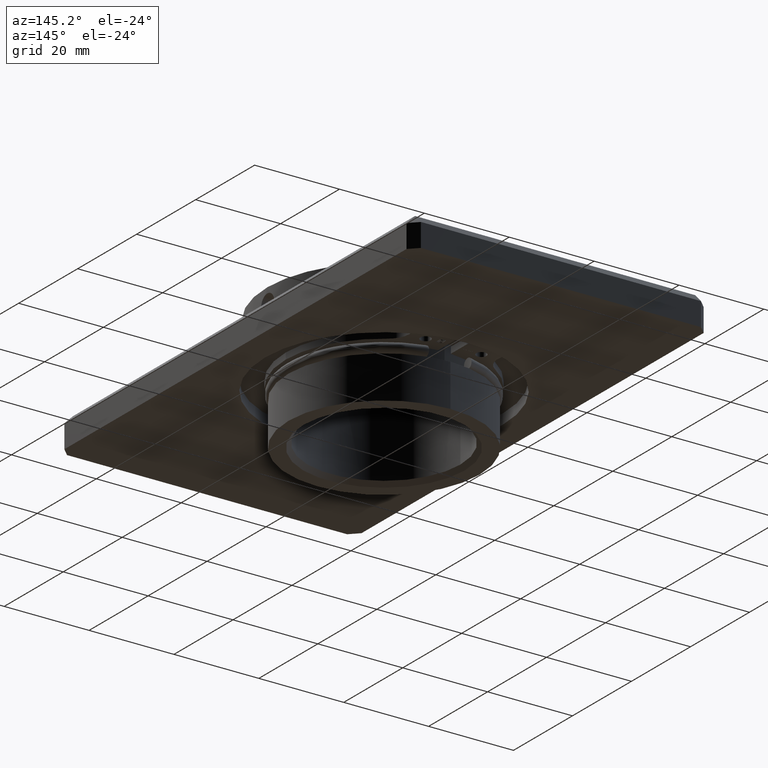
[diagram: clean part render]
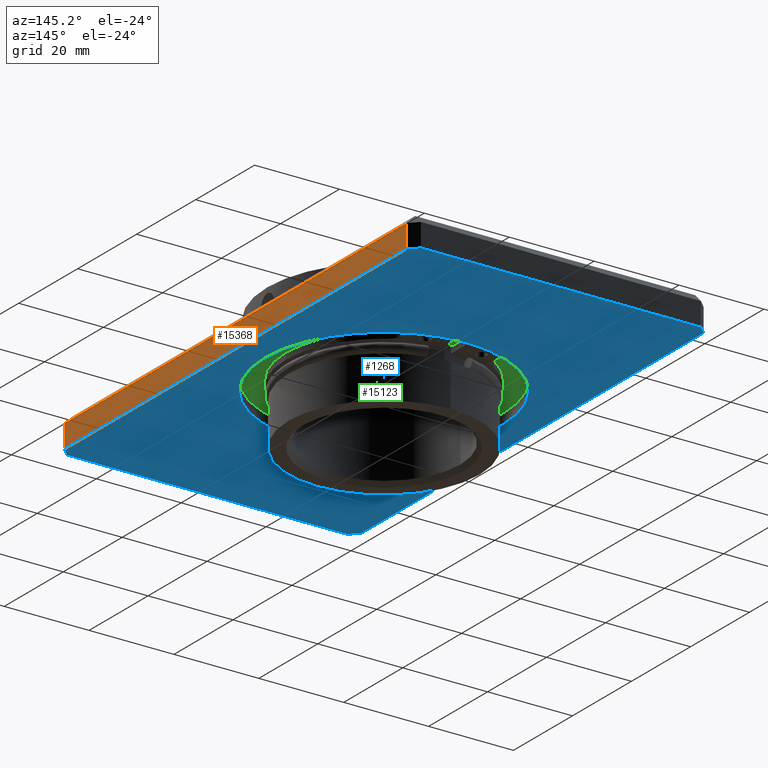
[diagram: same view with three faces highlighted in distinct colors, each labeled with its STEP entity id]
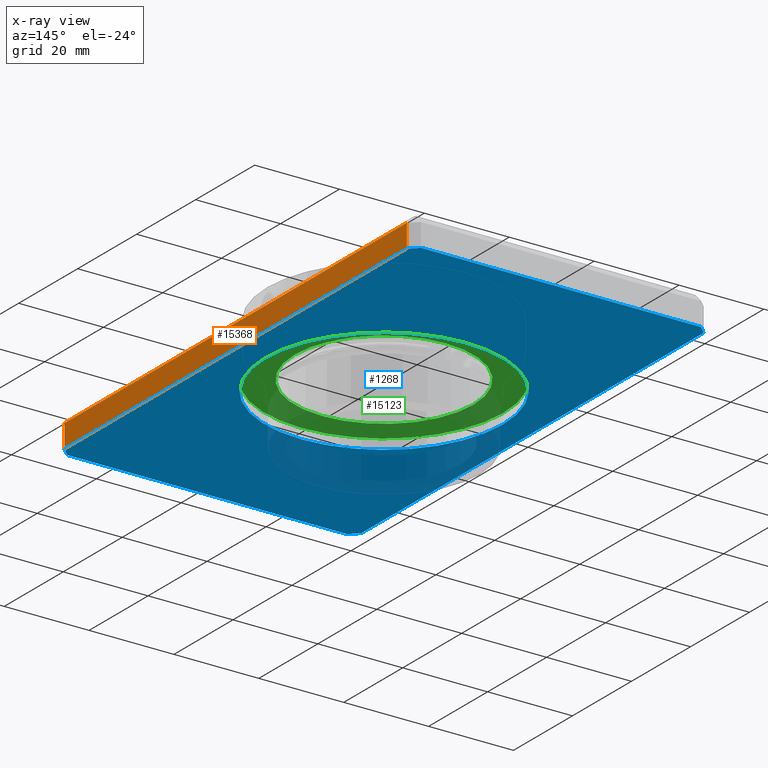
[diagram: x-ray of the same camera — body ghosted, the three highlighted faces saturated]
A machine part, auxiliary view with three faces highlighted in distinct colors.
The next image is the same camera in x-ray (body ghosted, the three faces saturated) — at least one of them is partly hidden behind the body in this view.
Their STEP definitions:

[orange] entity #15368 — the highlighted planar face has unit normal (-1, 0, 0).
#182 = CARTESIAN_POINT ( 'NONE',  ( 34.99999999999999289, -60.00000000000002132, 3.999999999999953371 ) ) ;
#621 = LINE ( 'NONE', #15013, #15327 ) ;
#1873 = EDGE_CURVE ( 'NONE', #4320, #17559, #621, .T. ) ;
#2188 = EDGE_CURVE ( 'NONE', #4320, #2394, #5314, .T. ) ;
#2394 = VERTEX_POINT ( 'NONE', #9208 ) ;
#2925 = ORIENTED_EDGE ( 'NONE', *, *, #1873, .F. ) ;
#2950 = CARTESIAN_POINT ( 'NONE',  ( 35.00000000000000000, 60.00000000000002132, -138.1244398944980674 ) ) ;
#3117 = CARTESIAN_POINT ( 'NONE',  ( 34.99999999999999289, 57.99999999999997868, -1.500000000000002220 ) ) ;
#3268 = CARTESIAN_POINT ( 'NONE',  ( 34.99999999999999289, -57.99999999999997868, -138.1244398944980958 ) ) ;
#3509 = VECTOR ( 'NONE', #11569, 1000.000000000000000 ) ;
#4320 = VERTEX_POINT ( 'NONE', #3117 ) ;
#4647 = VERTEX_POINT ( 'NONE', #16282 ) ;
#5314 = LINE ( 'NONE', #18167, #7299 ) ;
#5562 = EDGE_CURVE ( 'NONE', #4647, #17559, #17977, .T. ) ;
#5815 = DIRECTION ( 'NONE',  ( -1.000000000000000000, 1.156482317317871478E-16, 2.124423552260767018E-32 ) ) ;
#5972 = EDGE_CURVE ( 'NONE', #2394, #4647, #18411, .T. ) ;
#7299 = VECTOR ( 'NONE', #15496, 1000.000000000000000 ) ;
#8126 = ORIENTED_EDGE ( 'NONE', *, *, #5972, .T. ) ;
#9208 = CARTESIAN_POINT ( 'NONE',  ( 35.00000000000000000, 57.99999999999997868, 3.999999999999976019 ) ) ;
#9487 = VECTOR ( 'NONE', #10127, 1000.000000000000000 ) ;
#9638 = EDGE_LOOP ( 'NONE', ( #8126, #14545, #2925, #12456 ) ) ;
#10127 = DIRECTION ( 'NONE',  ( -1.156482317317871478E-16, -1.000000000000000000, -1.879283765641541183E-16 ) ) ;
#11569 = DIRECTION ( 'NONE',  ( 0.000000000000000000, 1.836970198721029441E-16, -1.000000000000000000 ) ) ;
#12456 = ORIENTED_EDGE ( 'NONE', *, *, #2188, .T. ) ;
#12934 = PLANE ( 'NONE',  #17556 ) ;
#13508 = CARTESIAN_POINT ( 'NONE',  ( 34.99999999999997158, -58.00000000000000711, -1.500000000000002220 ) ) ;
#14249 = DIRECTION ( 'NONE',  ( -1.156482317317871478E-16, -1.000000000000000000, 0.000000000000000000 ) ) ;
#14545 = ORIENTED_EDGE ( 'NONE', *, *, #5562, .T. ) ;
#15013 = CARTESIAN_POINT ( 'NONE',  ( 34.99999999999999289, -4.047688110612549361E-15, -1.500000000000002220 ) ) ;
#15327 = VECTOR ( 'NONE', #16443, 1000.000000000000000 ) ;
#15368 = ADVANCED_FACE ( 'NONE', ( #16303 ), #12934, .F. ) ;
#15496 = DIRECTION ( 'NONE',  ( 0.000000000000000000, -1.836970198721029441E-16, 1.000000000000000000 ) ) ;
#16282 = CARTESIAN_POINT ( 'NONE',  ( 34.99999999999999289, -58.00000000000000000, 3.999999999999953371 ) ) ;
#16303 = FACE_OUTER_BOUND ( 'NONE', #9638, .T. ) ;
#16443 = DIRECTION ( 'NONE',  ( -1.156482317317871478E-16, -1.000000000000000000, 0.000000000000000000 ) ) ;
#17556 = AXIS2_PLACEMENT_3D ( 'NONE', #2950, #5815, #14249 ) ;
#17559 = VERTEX_POINT ( 'NONE', #13508 ) ;
#17977 = LINE ( 'NONE', #3268, #3509 ) ;
#18167 = CARTESIAN_POINT ( 'NONE',  ( 35.00000000000000000, 58.00000000000000000, -138.1244398944980674 ) ) ;
#18411 = LINE ( 'NONE', #182, #9487 ) ;

[blue] entity #1268 — the highlighted planar face has unit normal (0, 0, -1).
#208 = VERTEX_POINT ( 'NONE', #16714 ) ;
#560 = EDGE_CURVE ( 'NONE', #7619, #208, #6449, .T. ) ;
#590 = DIRECTION ( 'NONE',  ( 1.000000000000000000, -1.982541115402064863E-16, 0.000000000000000000 ) ) ;
#614 = ORIENTED_EDGE ( 'NONE', *, *, #15046, .T. ) ;
#621 = LINE ( 'NONE', #15013, #15327 ) ;
#671 = CARTESIAN_POINT ( 'NONE',  ( -2.379049338482478211E-14, -60.00000000000000711, -1.500000000000002220 ) ) ;
#838 = ORIENTED_EDGE ( 'NONE', *, *, #7234, .T. ) ;
#975 = DIRECTION ( 'NONE',  ( -1.000000000000000000, 0.000000000000000000, 0.000000000000000000 ) ) ;
#982 = DIRECTION ( 'NONE',  ( -1.000000000000000000, 3.965082230804129727E-16, 0.000000000000000000 ) ) ;
#1214 = DIRECTION ( 'NONE',  ( 0.7071067811865474617, -0.7071067811865474617, 0.000000000000000000 ) ) ;
#1268 = ADVANCED_FACE ( 'NONE', ( #10616, #6433 ), #7308, .T. ) ;
#1338 = CARTESIAN_POINT ( 'NONE',  ( 46.49999999999998579, 46.49999999999998579, -1.500000000000002220 ) ) ;
#1582 = DIRECTION ( 'NONE',  ( 0.7071067811865474617, 0.7071067811865474617, 0.000000000000000000 ) ) ;
#1750 = LINE ( 'NONE', #8540, #15555 ) ;
#1873 = EDGE_CURVE ( 'NONE', #4320, #17559, #621, .T. ) ;
#2049 = VECTOR ( 'NONE', #982, 1000.000000000000000 ) ;
#2073 = EDGE_LOOP ( 'NONE', ( #2885, #6775 ) ) ;
#2081 = VECTOR ( 'NONE', #590, 1000.000000000000000 ) ;
#2460 = VERTEX_POINT ( 'NONE', #16570 ) ;
#2885 = ORIENTED_EDGE ( 'NONE', *, *, #12276, .F. ) ;
#3117 = CARTESIAN_POINT ( 'NONE',  ( 34.99999999999999289, 57.99999999999997868, -1.500000000000002220 ) ) ;
#3606 = CARTESIAN_POINT ( 'NONE',  ( -35.00000000000000711, 2.023844055306275864E-15, -1.500000000000002220 ) ) ;
#3632 = AXIS2_PLACEMENT_3D ( 'NONE', #12989, #5923, #15869 ) ;
#3654 = ORIENTED_EDGE ( 'NONE', *, *, #7440, .T. ) ;
#3878 = VECTOR ( 'NONE', #1214, 1000.000000000000114 ) ;
#4293 = VERTEX_POINT ( 'NONE', #17215 ) ;
#4320 = VERTEX_POINT ( 'NONE', #3117 ) ;
#4834 = VERTEX_POINT ( 'NONE', #9371 ) ;
#5016 = CARTESIAN_POINT ( 'NONE',  ( -28.00000000000000000, 7.837739514543126001E-16, -1.500000000000002220 ) ) ;
#5923 = DIRECTION ( 'NONE',  ( 0.000000000000000000, 0.000000000000000000, -1.000000000000000000 ) ) ;
#6433 = FACE_OUTER_BOUND ( 'NONE', #14261, .T. ) ;
#6449 = CIRCLE ( 'NONE', #14203, 28.00000000000000000 ) ;
#6775 = ORIENTED_EDGE ( 'NONE', *, *, #560, .F. ) ;
#7004 = ORIENTED_EDGE ( 'NONE', *, *, #1873, .T. ) ;
#7234 = EDGE_CURVE ( 'NONE', #17559, #4293, #17324, .T. ) ;
#7264 = VERTEX_POINT ( 'NONE', #14358 ) ;
#7308 = PLANE ( 'NONE',  #3632 ) ;
#7440 = EDGE_CURVE ( 'NONE', #18208, #2460, #1750, .T. ) ;
#7619 = VERTEX_POINT ( 'NONE', #5016 ) ;
#7895 = DIRECTION ( 'NONE',  ( 0.000000000000000000, 0.000000000000000000, -1.000000000000000000 ) ) ;
#8540 = CARTESIAN_POINT ( 'NONE',  ( -46.49999999999998579, 46.49999999999998579, -1.500000000000002220 ) ) ;
#8922 = CARTESIAN_POINT ( 'NONE',  ( -34.99999999999998579, 57.99999999999998579, -1.500000000000002220 ) ) ;
#9226 = CARTESIAN_POINT ( 'NONE',  ( 1.189524669241238948E-14, 60.00000000000000000, -1.500000000000002220 ) ) ;
#9371 = CARTESIAN_POINT ( 'NONE',  ( 32.99999999999998579, 59.99999999999998579, -1.500000000000002220 ) ) ;
#9873 = AXIS2_PLACEMENT_3D ( 'NONE', #12699, #18379, #15633 ) ;
#9985 = CARTESIAN_POINT ( 'NONE',  ( -35.00000000000000711, -57.99999999999997868, -1.500000000000002220 ) ) ;
#10520 = DIRECTION ( 'NONE',  ( -0.7071067811865474617, 0.7071067811865474617, 0.000000000000000000 ) ) ;
#10600 = DIRECTION ( 'NONE',  ( 5.782411586589357392E-17, 1.000000000000000000, 0.000000000000000000 ) ) ;
#10616 = FACE_BOUND ( 'NONE', #2073, .T. ) ;
#11206 = ORIENTED_EDGE ( 'NONE', *, *, #11526, .T. ) ;
#11526 = EDGE_CURVE ( 'NONE', #13023, #18208, #18027, .T. ) ;
#11598 = VECTOR ( 'NONE', #10520, 1000.000000000000114 ) ;
#12060 = LINE ( 'NONE', #1338, #3878 ) ;
#12276 = EDGE_CURVE ( 'NONE', #208, #7619, #14441, .T. ) ;
#12699 = CARTESIAN_POINT ( 'NONE',  ( 0.000000000000000000, -2.645237086158276281E-15, -1.500000000000002220 ) ) ;
#12804 = ORIENTED_EDGE ( 'NONE', *, *, #16624, .T. ) ;
#12989 = CARTESIAN_POINT ( 'NONE',  ( 0.000000000000000000, 0.000000000000000000, -1.500000000000002220 ) ) ;
#13023 = VERTEX_POINT ( 'NONE', #9985 ) ;
#13336 = CARTESIAN_POINT ( 'NONE',  ( -46.49999999999998579, -46.49999999999998579, -1.500000000000002220 ) ) ;
#13357 = ORIENTED_EDGE ( 'NONE', *, *, #17020, .T. ) ;
#13381 = LINE ( 'NONE', #671, #2049 ) ;
#13415 = LINE ( 'NONE', #9226, #2081 ) ;
#13508 = CARTESIAN_POINT ( 'NONE',  ( 34.99999999999997158, -58.00000000000000711, -1.500000000000002220 ) ) ;
#14203 = AXIS2_PLACEMENT_3D ( 'NONE', #16407, #7895, #975 ) ;
#14261 = EDGE_LOOP ( 'NONE', ( #14585, #7004, #838, #12804, #13357, #11206, #3654, #614 ) ) ;
#14358 = CARTESIAN_POINT ( 'NONE',  ( -32.99999999999998579, -59.99999999999998579, -1.500000000000002220 ) ) ;
#14441 = CIRCLE ( 'NONE', #9873, 28.00000000000000000 ) ;
#14585 = ORIENTED_EDGE ( 'NONE', *, *, #15236, .T. ) ;
#15013 = CARTESIAN_POINT ( 'NONE',  ( 34.99999999999999289, -4.047688110612549361E-15, -1.500000000000002220 ) ) ;
#15046 = EDGE_CURVE ( 'NONE', #2460, #4834, #13415, .T. ) ;
#15236 = EDGE_CURVE ( 'NONE', #4834, #4320, #12060, .T. ) ;
#15327 = VECTOR ( 'NONE', #16443, 1000.000000000000000 ) ;
#15555 = VECTOR ( 'NONE', #1582, 1000.000000000000114 ) ;
#15633 = DIRECTION ( 'NONE',  ( -1.000000000000000000, 0.000000000000000000, 0.000000000000000000 ) ) ;
#15869 = DIRECTION ( 'NONE',  ( -1.000000000000000000, 0.000000000000000000, -0.000000000000000000 ) ) ;
#16070 = LINE ( 'NONE', #13336, #11598 ) ;
#16407 = CARTESIAN_POINT ( 'NONE',  ( 0.000000000000000000, -2.645237086158276281E-15, -1.500000000000002220 ) ) ;
#16443 = DIRECTION ( 'NONE',  ( -1.156482317317871478E-16, -1.000000000000000000, 0.000000000000000000 ) ) ;
#16570 = CARTESIAN_POINT ( 'NONE',  ( -32.99999999999998579, 60.00000000000000711, -1.500000000000002220 ) ) ;
#16624 = EDGE_CURVE ( 'NONE', #4293, #7264, #13381, .T. ) ;
#16714 = CARTESIAN_POINT ( 'NONE',  ( 28.00000000000000000, -2.645237086158276281E-15, -1.500000000000002220 ) ) ;
#17020 = EDGE_CURVE ( 'NONE', #7264, #13023, #16070, .T. ) ;
#17115 = CARTESIAN_POINT ( 'NONE',  ( 46.50000000000004974, -46.49999999999988631, -1.500000000000002220 ) ) ;
#17215 = CARTESIAN_POINT ( 'NONE',  ( 32.99999999999997868, -60.00000000000002132, -1.500000000000002220 ) ) ;
#17231 = DIRECTION ( 'NONE',  ( -0.7071067811865463515, -0.7071067811865487940, 0.000000000000000000 ) ) ;
#17324 = LINE ( 'NONE', #17115, #18227 ) ;
#17559 = VERTEX_POINT ( 'NONE', #13508 ) ;
#17806 = VECTOR ( 'NONE', #10600, 1000.000000000000000 ) ;
#18027 = LINE ( 'NONE', #3606, #17806 ) ;
#18208 = VERTEX_POINT ( 'NONE', #8922 ) ;
#18227 = VECTOR ( 'NONE', #17231, 1000.000000000000000 ) ;
#18379 = DIRECTION ( 'NONE',  ( 0.000000000000000000, 0.000000000000000000, -1.000000000000000000 ) ) ;

[green] entity #15123 — the highlighted planar face has unit normal (-0, 0, -1).
#100 = CARTESIAN_POINT ( 'NONE',  ( -28.00000000000000000, 7.837739514543126001E-16, 0.8999999999999975797 ) ) ;
#513 = DIRECTION ( 'NONE',  ( 0.000000000000000000, 0.000000000000000000, -1.000000000000000000 ) ) ;
#839 = CIRCLE ( 'NONE', #8426, 21.00000000000000711 ) ;
#1382 = DIRECTION ( 'NONE',  ( -0.000000000000000000, -0.000000000000000000, -1.000000000000000000 ) ) ;
#1756 = CARTESIAN_POINT ( 'NONE',  ( 28.00000000000000000, -2.645237086158276281E-15, 0.8999999999999975797 ) ) ;
#1912 = CARTESIAN_POINT ( 'NONE',  ( 0.000000000000000000, -2.645237086158276281E-15, 0.8999999999999841460 ) ) ;
#2035 = AXIS2_PLACEMENT_3D ( 'NONE', #6211, #10837, #6656 ) ;
#2416 = CIRCLE ( 'NONE', #3199, 21.00000000000000711 ) ;
#3199 = AXIS2_PLACEMENT_3D ( 'NONE', #12639, #1382, #11317 ) ;
#4272 = VERTEX_POINT ( 'NONE', #100 ) ;
#4498 = EDGE_CURVE ( 'NONE', #4972, #6325, #839, .T. ) ;
#4628 = CIRCLE ( 'NONE', #4970, 28.00000000000000000 ) ;
#4750 = DIRECTION ( 'NONE',  ( -1.000000000000000000, 0.000000000000000000, 0.000000000000000000 ) ) ;
#4837 = DIRECTION ( 'NONE',  ( -1.000000000000000000, 0.000000000000000000, 0.000000000000000000 ) ) ;
#4970 = AXIS2_PLACEMENT_3D ( 'NONE', #13231, #15994, #4750 ) ;
#4972 = VERTEX_POINT ( 'NONE', #10165 ) ;
#5697 = ORIENTED_EDGE ( 'NONE', *, *, #6224, .T. ) ;
#6211 = CARTESIAN_POINT ( 'NONE',  ( -3.000000000000000000, 25.72566811571664402, 0.8999999999999975797 ) ) ;
#6224 = EDGE_CURVE ( 'NONE', #4272, #9648, #4628, .T. ) ;
#6325 = VERTEX_POINT ( 'NONE', #8224 ) ;
#6656 = DIRECTION ( 'NONE',  ( -1.000000000000000000, 0.000000000000000000, 0.000000000000000000 ) ) ;
#7568 = EDGE_CURVE ( 'NONE', #9648, #4272, #13066, .T. ) ;
#7588 = PLANE ( 'NONE',  #2035 ) ;
#7779 = EDGE_CURVE ( 'NONE', #6325, #4972, #2416, .T. ) ;
#8224 = CARTESIAN_POINT ( 'NONE',  ( 2.571758278209442450E-15, 21.00000000000000355, 0.8999999999999841460 ) ) ;
#8426 = AXIS2_PLACEMENT_3D ( 'NONE', #1912, #11972, #17709 ) ;
#8684 = ORIENTED_EDGE ( 'NONE', *, *, #7779, .F. ) ;
#9648 = VERTEX_POINT ( 'NONE', #1756 ) ;
#10165 = CARTESIAN_POINT ( 'NONE',  ( 0.000000000000000000, -21.00000000000001066, 0.8999999999999841460 ) ) ;
#10837 = DIRECTION ( 'NONE',  ( -0.000000000000000000, 0.000000000000000000, -1.000000000000000000 ) ) ;
#11317 = DIRECTION ( 'NONE',  ( -1.000000000000000000, 0.000000000000000000, 0.000000000000000000 ) ) ;
#11972 = DIRECTION ( 'NONE',  ( -0.000000000000000000, -0.000000000000000000, -1.000000000000000000 ) ) ;
#12639 = CARTESIAN_POINT ( 'NONE',  ( 0.000000000000000000, -2.645237086158276281E-15, 0.8999999999999841460 ) ) ;
#13061 = AXIS2_PLACEMENT_3D ( 'NONE', #15956, #513, #4837 ) ;
#13066 = CIRCLE ( 'NONE', #13061, 28.00000000000000000 ) ;
#13231 = CARTESIAN_POINT ( 'NONE',  ( 0.000000000000000000, -2.645237086158276281E-15, 0.8999999999999975797 ) ) ;
#13542 = ORIENTED_EDGE ( 'NONE', *, *, #4498, .F. ) ;
#13633 = EDGE_LOOP ( 'NONE', ( #13542, #8684 ) ) ;
#14082 = FACE_OUTER_BOUND ( 'NONE', #14372, .T. ) ;
#14372 = EDGE_LOOP ( 'NONE', ( #18384, #5697 ) ) ;
#15123 = ADVANCED_FACE ( 'NONE', ( #15445, #14082 ), #7588, .T. ) ;
#15445 = FACE_BOUND ( 'NONE', #13633, .T. ) ;
#15956 = CARTESIAN_POINT ( 'NONE',  ( 0.000000000000000000, -2.645237086158276281E-15, 0.8999999999999975797 ) ) ;
#15994 = DIRECTION ( 'NONE',  ( 0.000000000000000000, 0.000000000000000000, -1.000000000000000000 ) ) ;
#17709 = DIRECTION ( 'NONE',  ( -1.000000000000000000, 0.000000000000000000, 0.000000000000000000 ) ) ;
#18384 = ORIENTED_EDGE ( 'NONE', *, *, #7568, .T. ) ;